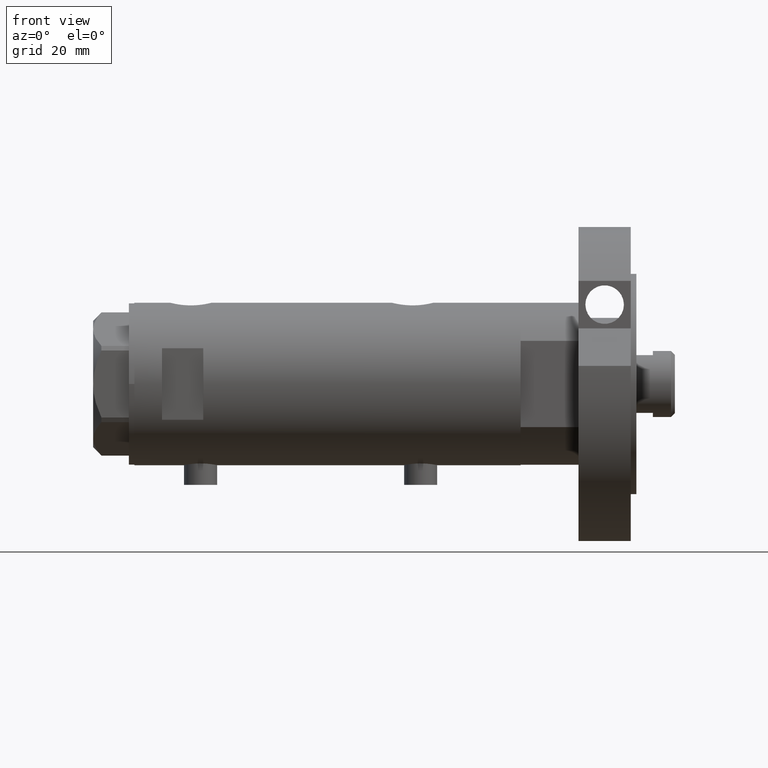
[diagram: clean part render]
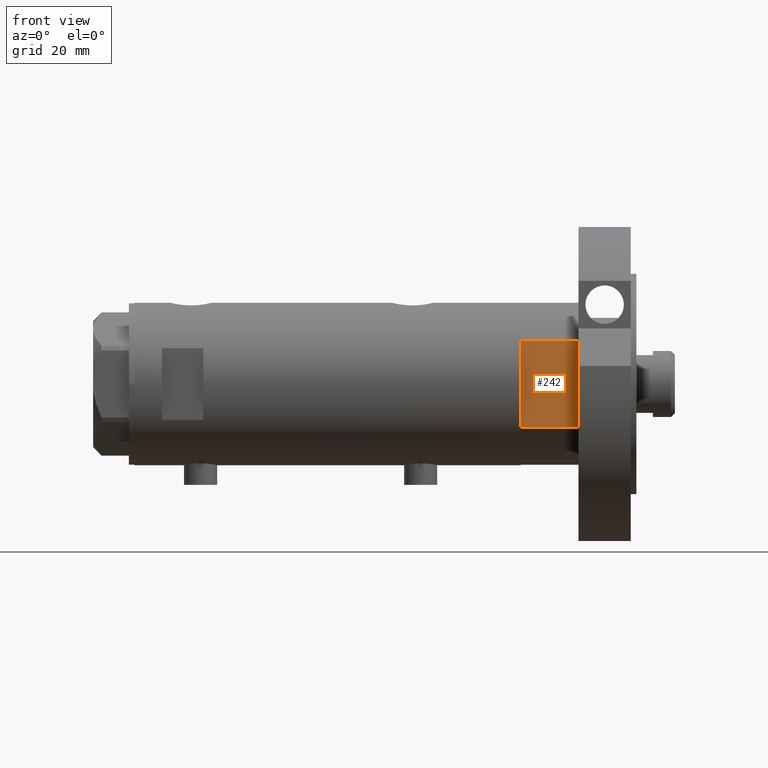
[diagram: same view with one face highlighted and labeled with its STEP entity id]
A machine part, front view. The second image highlights one B-rep face of the part: STEP entity #242.
In plain terms, the highlighted planar face has unit normal (-0, 1, 0).
Its self-contained STEP definition (entity closure, byte-faithful):
#96 = LINE ( 'NONE', #929, #4669 ) ;
#105 = CARTESIAN_POINT ( 'NONE',  ( -15.66045976336583045, -24.99999999999999645, 20.99999999999999645 ) ) ;
#242 = ADVANCED_FACE ( 'NONE', ( #5600 ), #2717, .F. ) ;
#268 = EDGE_CURVE ( 'NONE', #3971, #5100, #96, .T. ) ;
#432 = AXIS2_PLACEMENT_3D ( 'NONE', #436, #3678, #1331 ) ;
#436 = CARTESIAN_POINT ( 'NONE',  ( -15.66045976336583401, -25.00000000000000000, 0.000000000000000000 ) ) ;
#449 = LINE ( 'NONE', #5738, #854 ) ;
#854 = VECTOR ( 'NONE', #5206, 1000.000000000000000 ) ;
#929 = CARTESIAN_POINT ( 'NONE',  ( -15.66045976336583401, -25.00000000000000000, 0.000000000000000000 ) ) ;
#1110 = CARTESIAN_POINT ( 'NONE',  ( -15.66045976336582690, -25.00000000000000000, 0.000000000000000000 ) ) ;
#1259 = ORIENTED_EDGE ( 'NONE', *, *, #268, .F. ) ;
#1331 = DIRECTION ( 'NONE',  ( 0.000000000000000000, -0.000000000000000000, 1.000000000000000000 ) ) ;
#1360 = LINE ( 'NONE', #2266, #1654 ) ;
#1654 = VECTOR ( 'NONE', #1821, 1000.000000000000000 ) ;
#1761 = VECTOR ( 'NONE', #3765, 1000.000000000000000 ) ;
#1821 = DIRECTION ( 'NONE',  ( -0.000000000000000000, -0.000000000000000000, 1.000000000000000000 ) ) ;
#2266 = CARTESIAN_POINT ( 'NONE',  ( -15.66045976336583401, -25.00000000000000000, 0.000000000000000000 ) ) ;
#2477 = EDGE_CURVE ( 'NONE', #5171, #2918, #449, .T. ) ;
#2641 = VECTOR ( 'NONE', #5790, 1000.000000000000000 ) ;
#2671 = CARTESIAN_POINT ( 'NONE',  ( 7.141428428542853091, -25.00000000000000000, 0.000000000000000000 ) ) ;
#2717 = PLANE ( 'NONE',  #432 ) ;
#2894 = DIRECTION ( 'NONE',  ( -0.000000000000000000, -0.000000000000000000, 1.000000000000000000 ) ) ;
#2918 = VERTEX_POINT ( 'NONE', #105 ) ;
#3124 = VECTOR ( 'NONE', #2894, 1000.000000000000000 ) ;
#3225 = VERTEX_POINT ( 'NONE', #1110 ) ;
#3275 = EDGE_CURVE ( 'NONE', #5028, #5171, #5775, .T. ) ;
#3678 = DIRECTION ( 'NONE',  ( -0.000000000000000000, 1.000000000000000000, 0.000000000000000000 ) ) ;
#3728 = ORIENTED_EDGE ( 'NONE', *, *, #4813, .F. ) ;
#3759 = ORIENTED_EDGE ( 'NONE', *, *, #3275, .T. ) ;
#3765 = DIRECTION ( 'NONE',  ( -1.000000000000000000, -0.000000000000000000, -0.000000000000000000 ) ) ;
#3777 = EDGE_LOOP ( 'NONE', ( #5061, #4460, #4830, #1259, #3728, #3759 ) ) ;
#3945 = LINE ( 'NONE', #5625, #1761 ) ;
#3971 = VERTEX_POINT ( 'NONE', #2671 ) ;
#4083 = EDGE_CURVE ( 'NONE', #5100, #3225, #5265, .T. ) ;
#4125 = CARTESIAN_POINT ( 'NONE',  ( 15.66045976336583045, -25.00000000000000000, 21.00000000000000355 ) ) ;
#4267 = CARTESIAN_POINT ( 'NONE',  ( -15.66045976336583401, -25.00000000000000000, 0.000000000000000000 ) ) ;
#4460 = ORIENTED_EDGE ( 'NONE', *, *, #4698, .F. ) ;
#4669 = VECTOR ( 'NONE', #5656, 1000.000000000000000 ) ;
#4698 = EDGE_CURVE ( 'NONE', #3225, #2918, #1360, .T. ) ;
#4813 = EDGE_CURVE ( 'NONE', #5028, #3971, #3945, .T. ) ;
#4830 = ORIENTED_EDGE ( 'NONE', *, *, #4083, .F. ) ;
#5028 = VERTEX_POINT ( 'NONE', #6019 ) ;
#5061 = ORIENTED_EDGE ( 'NONE', *, *, #2477, .T. ) ;
#5100 = VERTEX_POINT ( 'NONE', #5640 ) ;
#5171 = VERTEX_POINT ( 'NONE', #4125 ) ;
#5206 = DIRECTION ( 'NONE',  ( -1.000000000000000000, -0.000000000000000000, -0.000000000000000000 ) ) ;
#5265 = LINE ( 'NONE', #4267, #2641 ) ;
#5311 = CARTESIAN_POINT ( 'NONE',  ( 15.66045976336583401, -25.00000000000000000, 0.000000000000000000 ) ) ;
#5600 = FACE_OUTER_BOUND ( 'NONE', #3777, .T. ) ;
#5625 = CARTESIAN_POINT ( 'NONE',  ( -15.66045976336583401, -25.00000000000000000, 0.000000000000000000 ) ) ;
#5640 = CARTESIAN_POINT ( 'NONE',  ( -7.141428428542853091, -25.00000000000000000, 0.000000000000000000 ) ) ;
#5656 = DIRECTION ( 'NONE',  ( -1.000000000000000000, -0.000000000000000000, -0.000000000000000000 ) ) ;
#5738 = CARTESIAN_POINT ( 'NONE',  ( -15.66045976336583401, -25.00000000000000000, 21.00000000000000000 ) ) ;
#5775 = LINE ( 'NONE', #5311, #3124 ) ;
#5790 = DIRECTION ( 'NONE',  ( -1.000000000000000000, -0.000000000000000000, -0.000000000000000000 ) ) ;
#6019 = CARTESIAN_POINT ( 'NONE',  ( 15.66045976336583401, -25.00000000000000000, 0.000000000000000000 ) ) ;